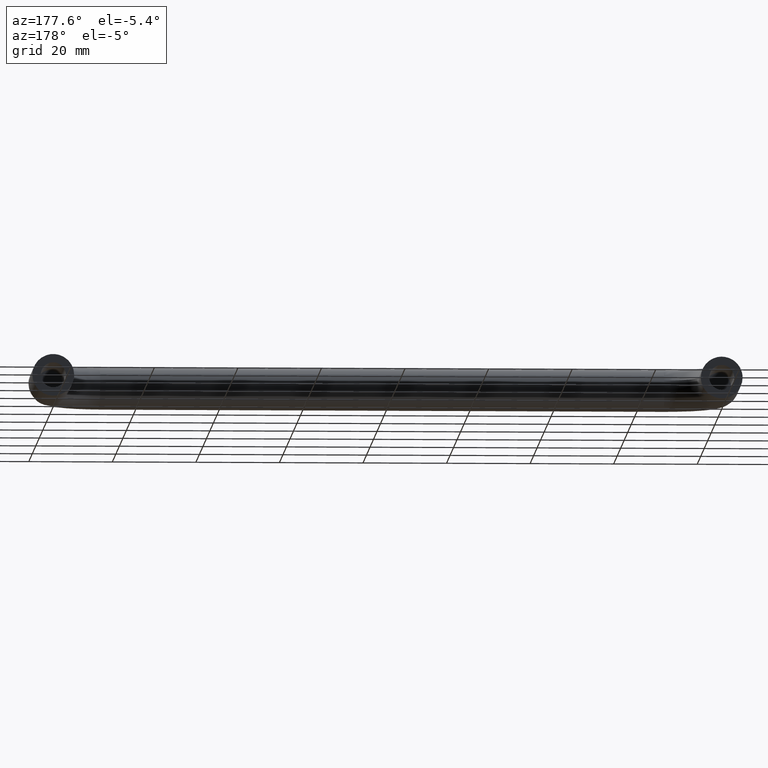
[diagram: clean part render]
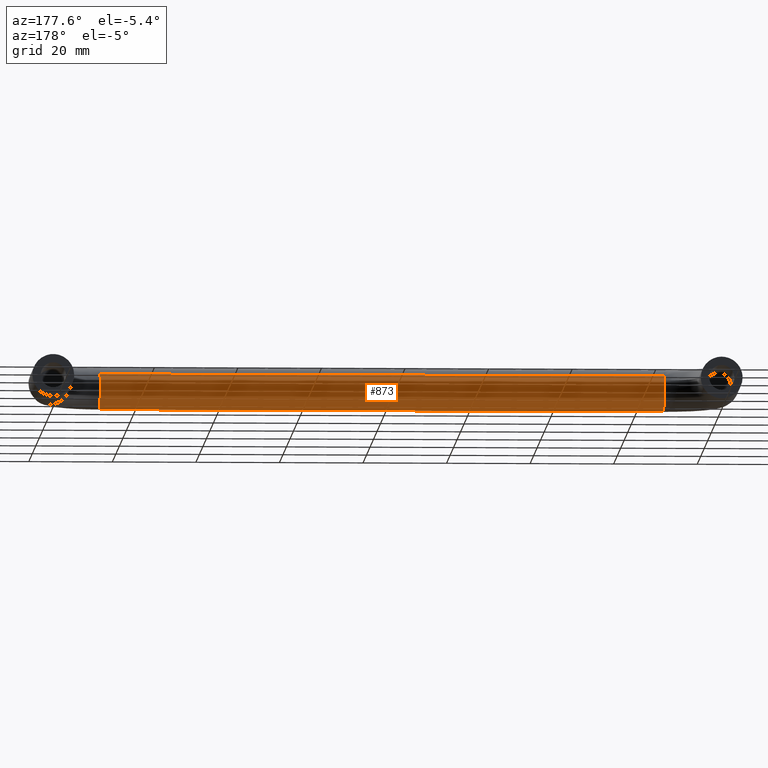
[diagram: same view with one face highlighted and labeled with its STEP entity id]
A machine part, auxiliary view. The second image highlights one B-rep face of the part: STEP entity #873.
In plain terms, the highlighted face is a freeform B-spline surface patch.
Its self-contained STEP definition (entity closure, byte-faithful):
#650=CARTESIAN_POINT('',(147.500000000000000,-31.182221785298410,3.228710191911005));
#651=VERTEX_POINT('',#650);
#669=CARTESIAN_POINT('',(12.500000000006970,-31.182216886848611,3.228704399729181));
#670=VERTEX_POINT('',#669);
#671=CARTESIAN_POINT('',(12.500000000006970,-31.182216886848611,3.228704399729181));
#672=CARTESIAN_POINT('',(147.500000000000000,-31.182221785298410,3.228710191911005));
#673=QUASI_UNIFORM_CURVE('',1,(#671,#672),.UNSPECIFIED.,.F.,.U.);
#674=EDGE_CURVE('',#670,#651,#673,.T.);
#693=CARTESIAN_POINT('',(12.500000000000000,-38.626872194420599,-3.441772520858758));
#694=VERTEX_POINT('',#693);
#708=CARTESIAN_POINT('',(147.500000000000000,-38.626872198659441,-3.441772516391942));
#709=VERTEX_POINT('',#708);
#710=CARTESIAN_POINT('',(12.500000000000000,-38.626872194420599,-3.441772520858758));
#711=CARTESIAN_POINT('',(147.500000000000000,-38.626872198659441,-3.441772516391942));
#712=QUASI_UNIFORM_CURVE('',1,(#710,#711),.UNSPECIFIED.,.F.,.U.);
#713=EDGE_CURVE('',#694,#709,#712,.T.);
#746=CARTESIAN_POINT('',(9.124999999932093,-38.626871855061438,-3.441772878468769));
#747=CARTESIAN_POINT('',(9.124999999932093,-35.185098976592663,-7.068644733530205));
#748=CARTESIAN_POINT('',(9.124999999932093,-31.558227121531232,-3.626871855061437));
#749=CARTESIAN_POINT('',(9.124999999932093,-28.133178209124662,-0.376621797922258));
#750=CARTESIAN_POINT('',(9.124999999932095,-31.182221785297674,3.228710191910127));
#751=CARTESIAN_POINT('',(150.959375002785690,-38.626871855061417,-3.441772878468769));
#752=CARTESIAN_POINT('',(150.959375002785750,-35.185098976592649,-7.068644733530205));
#753=CARTESIAN_POINT('',(150.959375002785690,-31.558227121531221,-3.626871855061437));
#754=CARTESIAN_POINT('',(150.959375002785720,-28.133178209124633,-0.376621797922258));
#755=CARTESIAN_POINT('',(150.959375002785750,-31.182221785297664,3.228710191910127));
#763=(BOUNDED_SURFACE()B_SPLINE_SURFACE(2,1,((#746,#751),(#747,#752),(#748,#753),(#749,#754),(#750,#755)),.UNSPECIFIED.,.F.,.F.,.U.)B_SPLINE_SURFACE_WITH_KNOTS((3,2,3),(2,2),(0.0,8.284271247461899,16.237171645025320),(0.0,141.834375002853590),.UNSPECIFIED.)GEOMETRIC_REPRESENTATION_ITEM()RATIONAL_B_SPLINE_SURFACE(((1.0,1.0),(0.707106781186548,0.707106781186548),(1.0,1.0),(0.718822509939086,0.718822509939086),(0.977505800795127,0.977505800795127)))REPRESENTATION_ITEM('')SURFACE());
#764=CARTESIAN_POINT('',(147.500000000000000,-30.0,0.0));
#765=VERTEX_POINT('',#764);
#766=CARTESIAN_POINT('',(147.500000000000000,-30.0,0.0));
#767=CARTESIAN_POINT('',(147.499999999999970,-30.000000000000014,1.830795759032039));
#768=CARTESIAN_POINT('',(147.500000000000030,-31.182221785298420,3.228710191911005));
#776=(BOUNDED_CURVE()B_SPLINE_CURVE(2,(#766,#767,#768),.UNSPECIFIED.,.F.,.U.)B_SPLINE_CURVE_WITH_KNOTS((3,3),(0.500000000000000,0.612408089723808),.UNSPECIFIED.)CURVE()GEOMETRIC_REPRESENTATION_ITEM()RATIONAL_B_SPLINE_CURVE((1.0,0.868305731120490,0.855039471779534))REPRESENTATION_ITEM(''));
#777=EDGE_CURVE('',#765,#651,#776,.T.);
#778=ORIENTED_EDGE('',*,*,#777,.F.);
#779=CARTESIAN_POINT('',(147.500000001367910,-34.937169798597438,-4.999605220994123));
#780=VERTEX_POINT('',#779);
#781=CARTESIAN_POINT('',(147.500000001367910,-34.937169798597438,-4.999605220994124));
#782=CARTESIAN_POINT('',(147.500000000000030,-30.000000000000007,-4.937559645613943));
#783=CARTESIAN_POINT('',(147.500000000000000,-30.0,0.0));
#791=(BOUNDED_CURVE()B_SPLINE_CURVE(2,(#781,#782,#783),.UNSPECIFIED.,.F.,.U.)B_SPLINE_CURVE_WITH_KNOTS((3,3),(0.252215704217978,0.500000000000000),.UNSPECIFIED.)CURVE()GEOMETRIC_REPRESENTATION_ITEM()RATIONAL_B_SPLINE_CURVE((0.994854295322463,0.709702640147916,1.0))REPRESENTATION_ITEM(''));
#792=EDGE_CURVE('',#780,#765,#791,.T.);
#793=ORIENTED_EDGE('',*,*,#792,.F.);
#794=CARTESIAN_POINT('',(147.499999999999970,-38.626872198659449,-3.441772516391941));
#795=CARTESIAN_POINT('',(147.500000000000060,-37.148170121130043,-5.000000000000001));
#796=CARTESIAN_POINT('',(147.500000000000000,-35.0,-5.0));
#797=CARTESIAN_POINT('',(147.500000000000000,-34.968583658054513,-5.0));
#798=CARTESIAN_POINT('',(147.500000001367910,-34.937169798597438,-4.999605220994124));
#806=(BOUNDED_CURVE()B_SPLINE_CURVE(2,(#794,#795,#796,#797,#798),.UNSPECIFIED.,.F.,.U.)B_SPLINE_CURVE_WITH_KNOTS((3,2,3),(0.121049496527031,0.250000000000000,0.252215704217978),.UNSPECIFIED.)CURVE()GEOMETRIC_REPRESENTATION_ITEM()RATIONAL_B_SPLINE_CURVE((0.853699663600792,0.848925087880748,1.0,0.997404141038632,0.994854295322463))REPRESENTATION_ITEM(''));
#807=EDGE_CURVE('',#709,#780,#806,.T.);
#808=ORIENTED_EDGE('',*,*,#807,.F.);
#809=ORIENTED_EDGE('',*,*,#713,.F.);
#810=CARTESIAN_POINT('',(12.500000000970360,-33.191768631769513,-4.661576913336010));
#811=VERTEX_POINT('',#810);
#812=CARTESIAN_POINT('',(12.500000000000005,-38.626872194420599,-3.441772520858758));
#813=CARTESIAN_POINT('',(12.499999999999998,-37.148170113835420,-5.0));
#814=CARTESIAN_POINT('',(12.500000000000000,-35.0,-5.0));
#815=CARTESIAN_POINT('',(12.500000000000005,-34.064215197122188,-5.0));
#816=CARTESIAN_POINT('',(12.500000000970365,-33.191768631769520,-4.661576913336010));
#824=(BOUNDED_CURVE()B_SPLINE_CURVE(2,(#812,#813,#814,#815,#816),.UNSPECIFIED.,.F.,.U.)B_SPLINE_CURVE_WITH_KNOTS((3,2,3),(0.121049496898760,0.250000000000000,0.311409344367956),.UNSPECIFIED.)CURVE()GEOMETRIC_REPRESENTATION_ITEM()RATIONAL_B_SPLINE_CURVE((0.853699663573264,0.848925088316254,1.0,0.928054477851383,0.891453974465620))REPRESENTATION_ITEM(''));
#825=EDGE_CURVE('',#694,#811,#824,.T.);
#826=ORIENTED_EDGE('',*,*,#825,.T.);
#827=CARTESIAN_POINT('',(12.500000000000000,-30.0,0.0));
#828=VERTEX_POINT('',#827);
#829=CARTESIAN_POINT('',(12.500000000970360,-33.191768631769513,-4.661576913336010));
#830=CARTESIAN_POINT('',(12.500000000000000,-30.000000000000004,-3.423485968655530));
#831=CARTESIAN_POINT('',(12.500000000000000,-30.0,0.0));
#839=(BOUNDED_CURVE()B_SPLINE_CURVE(2,(#829,#830,#831),.UNSPECIFIED.,.F.,.U.)B_SPLINE_CURVE_WITH_KNOTS((3,3),(0.311409344367956,0.500000000000000),.UNSPECIFIED.)CURVE()GEOMETRIC_REPRESENTATION_ITEM()RATIONAL_B_SPLINE_CURVE((0.891453974465620,0.779052303335165,1.0))REPRESENTATION_ITEM(''));
#840=EDGE_CURVE('',#811,#828,#839,.T.);
#841=ORIENTED_EDGE('',*,*,#840,.T.);
#842=CARTESIAN_POINT('',(12.500000000011530,-30.449470146599229,2.071877905019577));
#843=VERTEX_POINT('',#842);
#844=CARTESIAN_POINT('',(12.500000000000000,-30.0,0.0));
#845=CARTESIAN_POINT('',(12.500000000000004,-30.000000000000007,1.084692648932033));
#846=CARTESIAN_POINT('',(12.500000000011527,-30.449470146599225,2.071877905019577));
#854=(BOUNDED_CURVE()B_SPLINE_CURVE(2,(#844,#845,#846),.UNSPECIFIED.,.F.,.U.)B_SPLINE_CURVE_WITH_KNOTS((3,3),(0.500000000000000,0.570375489961712),.UNSPECIFIED.)CURVE()GEOMETRIC_REPRESENTATION_ITEM()RATIONAL_B_SPLINE_CURVE((1.0,0.917549984878162,0.881519651448723))REPRESENTATION_ITEM(''));
#855=EDGE_CURVE('',#828,#843,#854,.T.);
#856=ORIENTED_EDGE('',*,*,#855,.T.);
#857=CARTESIAN_POINT('',(12.500000000011521,-30.449470146599221,2.071877905019577));
#858=CARTESIAN_POINT('',(12.500000000009047,-30.735884297693200,2.700938209100045));
#859=CARTESIAN_POINT('',(12.500000000006976,-31.182216886848611,3.228704399729182));
#867=(BOUNDED_CURVE()B_SPLINE_CURVE(2,(#857,#858,#859),.UNSPECIFIED.,.F.,.U.)B_SPLINE_CURVE_WITH_KNOTS((3,3),(0.570375489961713,0.612407860404824),.UNSPECIFIED.)CURVE()GEOMETRIC_REPRESENTATION_ITEM()RATIONAL_B_SPLINE_CURVE((0.881519651448722,0.860000222984083,0.855039525907895))REPRESENTATION_ITEM(''));
#868=EDGE_CURVE('',#843,#670,#867,.T.);
#869=ORIENTED_EDGE('',*,*,#868,.T.);
#870=ORIENTED_EDGE('',*,*,#674,.T.);
#871=EDGE_LOOP('',(#778,#793,#808,#809,#826,#841,#856,#869,#870));
#872=FACE_OUTER_BOUND('',#871,.T.);
#873=ADVANCED_FACE('',(#872),#763,.T.);